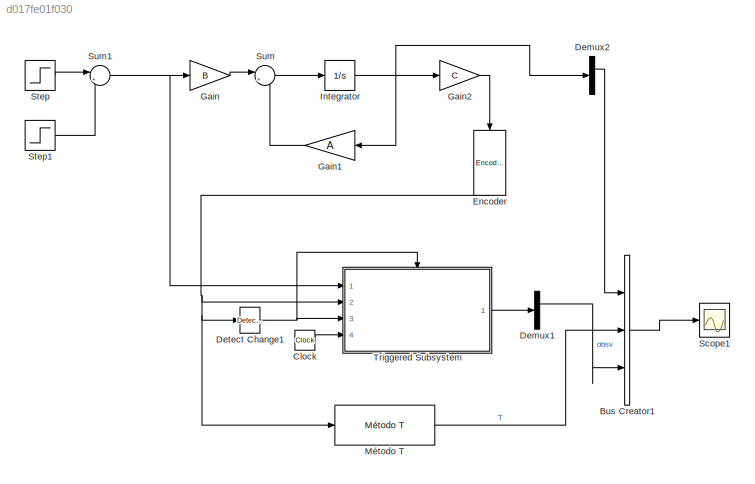
MODEL slx_d017fe01f030
KIND model
BLOCK [BusCreator] Bus Creator1
  DisplayOption = bar
  Inputs = 3
  Ports = [3, 1]
BLOCK [Clock] Clock
BLOCK [Demux] Demux1
  DisplayOption = bar
  Outputs = 2
  Ports = [1, 2]
BLOCK [Demux] Demux2
  DisplayOption = bar
  Outputs = 2
  Ports = [1, 2]
BLOCK [Reference] Detect Change1  REF=simulink/Logic and Bit
Operations/Detect
Change
  InputProcessing = Inherited
  OutDataTypeStr = boolean
  Ports = [1, 1]
  SourceBlock = simulink/Logic and Bit\nOperations/Detect\nChange
  SourceType = Detect Change
  vinit = 0
BLOCK [Reference] Encoder  REF=Encoder/Encoder
  Nr = 10
  Ports = [1, 1]
  SourceBlock = Encoder/Encoder
  SourceType = Encoder de quadratura
BLOCK [Gain] Gain
  Gain = B
  Multiplication = Matrix(K*u)
  OutDataTypeStr = Inherit: Inherit via internal rule
  ParamDataTypeStr = Inherit: Inherit via internal rule
  SaturateOnIntegerOverflow = off
BLOCK [Gain] Gain1
  Gain = A
  Multiplication = Matrix(K*u)
  OutDataTypeStr = Inherit: Inherit via internal rule
  ParamDataTypeStr = Inherit: Inherit via internal rule
  SaturateOnIntegerOverflow = off
BLOCK [Gain] Gain2
  Gain = C
  Multiplication = Matrix(K*u)
  OutDataTypeStr = Inherit: Inherit via internal rule
  ParamDataTypeStr = Inherit: Inherit via internal rule
  SaturateOnIntegerOverflow = off
BLOCK [Integrator] Integrator
  Ports = [1, 1]
BLOCK [Reference] Método T  REF=Encoder/Método T
  Ports = [1, 1]
  SourceBlock = Encoder/Método T
  SourceType = Método de medição de velocidade T
  m = 1
BLOCK [Scope] Scope1
  DataFormat = StructureWithTime
  Floating = off
  LegendLocations = 0.91365     0.89046      0.0675    0.063707
  LimitDataPoints = off
  NumInputPorts = 1
  Ports = [1]
  SampleTime = 0
  ShowLegends = on
  TimeRange = 10
  YMax = 10000
  YMin = -500
BLOCK [Step] Step
  After = 20
  SampleTime = 0
  Time = 0
BLOCK [Step] Step1
  After = -40
  SampleTime = 0
  Time = 5
BLOCK [Sum] Sum
  IconShape = round
  InputSameDT = off
  Inputs = |++
  OutDataTypeStr = Inherit: Inherit via internal rule
  Ports = [2, 1]
  SaturateOnIntegerOverflow = off
BLOCK [Sum] Sum1
  IconShape = round
  InputSameDT = off
  Inputs = |++
  OutDataTypeStr = Inherit: Inherit via internal rule
  Ports = [2, 1]
  SaturateOnIntegerOverflow = off
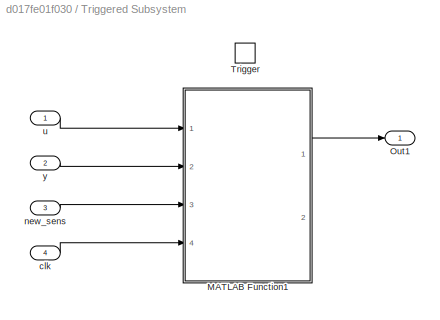
BLOCK [SubSystem] Triggered Subsystem
  FunctionWithSeparateData = off
  MaskHideContents = off
  MinAlgLoopOccurrences = off
  Opaque = off
  Ports = [4, 1, 0, 1]
  PropExecContextOutsideSubsystem = off
  RTWSystemCode = Auto
  RequestExecContextInheritance = off
  TreatAsAtomicUnit = on
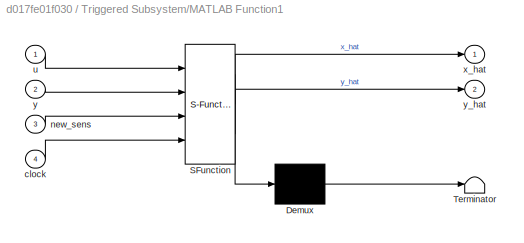
BLOCK [SubSystem] Triggered Subsystem/MATLAB Function1
  ErrorFcn = Stateflow.Translate.translate
  FunctionWithSeparateData = off
  MaskHideContents = off
  MinAlgLoopOccurrences = off
  Opaque = off
  PermitHierarchicalResolution = ExplicitOnly
  Ports = [4, 2]
  PropExecContextOutsideSubsystem = off
  RTWSystemCode = Auto
  RequestExecContextInheritance = off
  SFBlockType = MATLAB Function
  TreatAsAtomicUnit = on
BLOCK [Demux] Triggered Subsystem/MATLAB Function1/ Demux 
  Outputs = 1
  Ports = [1, 1]
BLOCK [S-Function] Triggered Subsystem/MATLAB Function1/ SFunction 
  EnableBusSupport = on
  FunctionName = sf_sfun
  PortCounts = [4 3]
  Ports = [4, 3]
  Tag = Stateflow S-Function observador_atualiza_so_quando_sensor 11
BLOCK [Terminator] Triggered Subsystem/MATLAB Function1/ Terminator 
BLOCK [Inport] Triggered Subsystem/MATLAB Function1/clock
  IconDisplay = Port number
  Port = 4
BLOCK [Inport] Triggered Subsystem/MATLAB Function1/new_sens
  IconDisplay = Port number
  Port = 3
BLOCK [Inport] Triggered Subsystem/MATLAB Function1/u
  IconDisplay = Port number
BLOCK [Outport] Triggered Subsystem/MATLAB Function1/x_hat
  IconDisplay = Port number
BLOCK [Inport] Triggered Subsystem/MATLAB Function1/y
  IconDisplay = Port number
  Port = 2
BLOCK [Outport] Triggered Subsystem/MATLAB Function1/y_hat
  IconDisplay = Port number
  Port = 2
BLOCK [Outport] Triggered Subsystem/Out1
  IconDisplay = Port number
BLOCK [TriggerPort] Triggered Subsystem/Trigger
  Ports = []
  StatesWhenEnabling = held
BLOCK [Inport] Triggered Subsystem/clk
  IconDisplay = Port number
  Port = 4
BLOCK [Inport] Triggered Subsystem/new_sens
  IconDisplay = Port number
  Port = 3
BLOCK [Inport] Triggered Subsystem/u
  IconDisplay = Port number
BLOCK [Inport] Triggered Subsystem/y
  IconDisplay = Port number
  Port = 2
LINE Bus Creator1:1 -> Scope1:1
LINE Clock:1 -> Triggered Subsystem:4
LINE Demux1:1 -> Bus Creator1:3
LINE Demux2:1 -> Bus Creator1:1
NET Detect Change1:1 -> Triggered Subsystem:3, Triggered Subsystem:trigger
NET Encoder:1 -> Detect Change1:1, Método T:1, Triggered Subsystem:2
LINE Gain1:1 -> Sum:2
LINE Gain2:1 -> Encoder:1
LINE Gain:1 -> Sum:1
NET Integrator:1 -> Demux2:1, Gain1:1, Gain2:1
LINE Método T:1 -> Bus Creator1:2
LINE Step1:1 -> Sum1:2
LINE Step:1 -> Sum1:1
NET Sum1:1 -> Gain:1, Triggered Subsystem:1
LINE Sum:1 -> Integrator:1
LINE Triggered Subsystem/MATLAB Function1:1 -> Triggered Subsystem/Out1:1
LINE Triggered Subsystem/clk:1 -> Triggered Subsystem/MATLAB Function1:4
LINE Triggered Subsystem/new_sens:1 -> Triggered Subsystem/MATLAB Function1:3
LINE Triggered Subsystem/u:1 -> Triggered Subsystem/MATLAB Function1:1
LINE Triggered Subsystem/y:1 -> Triggered Subsystem/MATLAB Function1:2
LINE Triggered Subsystem:1 -> Demux1:1
note: NET lines group one-source signal fan-out (src -> all destinations, sorted); 1:1 wires keep LINE
